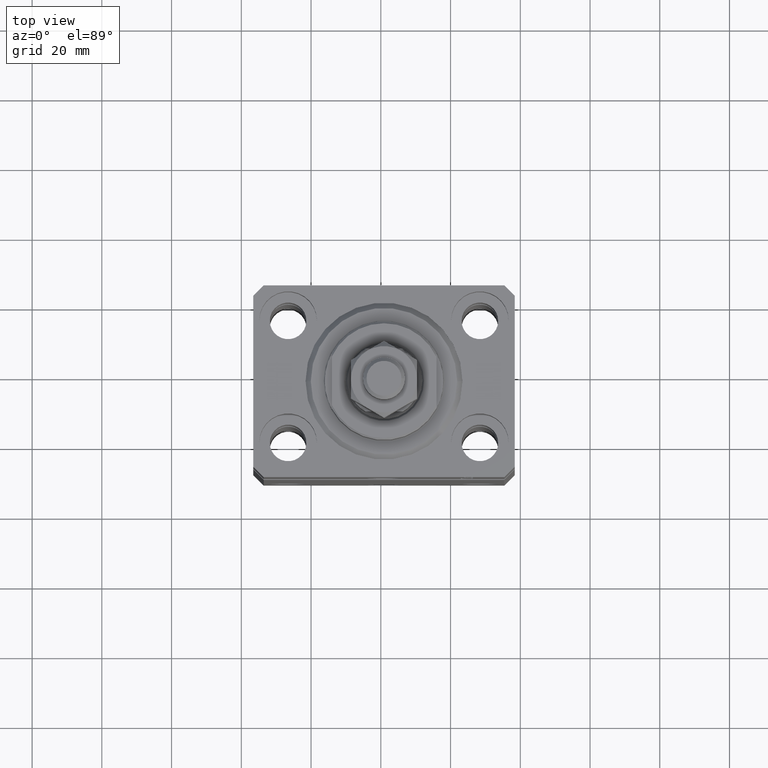
[diagram: clean part render]
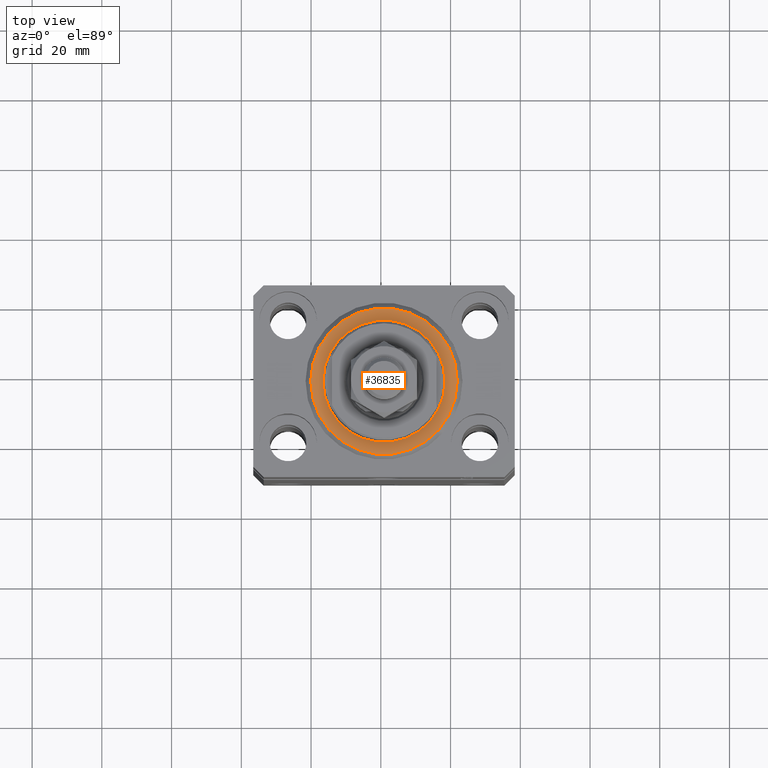
[diagram: same view with one face highlighted and labeled with its STEP entity id]
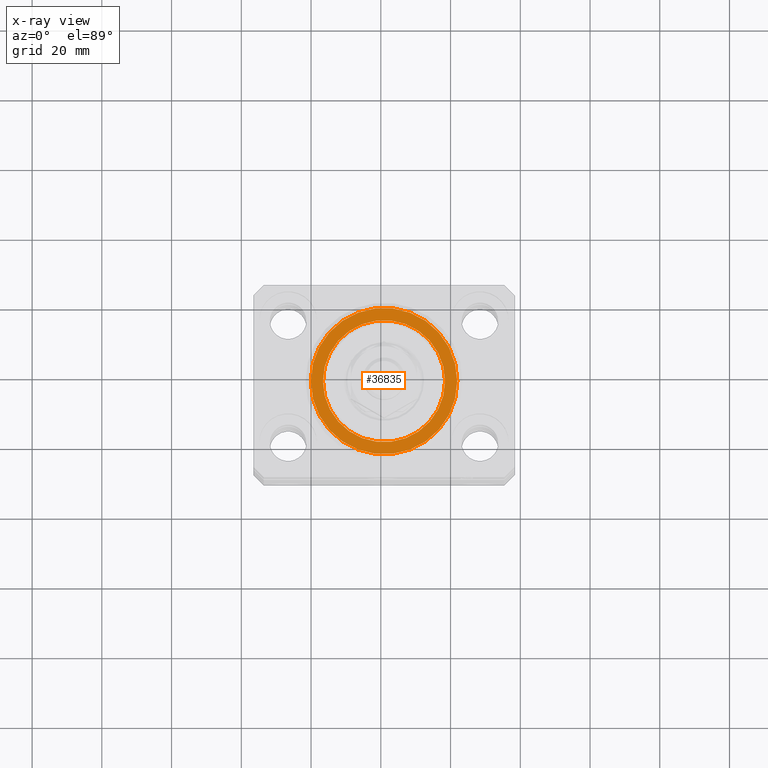
[diagram: x-ray of the same camera — body ghosted, the highlighted face saturated]
A machine part, top view. The second image highlights one B-rep face of the part: STEP entity #36835.
The next image is the same camera in x-ray: the body ghosted, the highlighted face saturated — about 0% of this face is hidden behind the body in this view.
In plain terms, the highlighted planar face has unit normal (0, 0, -1).
Its self-contained STEP definition (entity closure, byte-faithful):
#1366 = CARTESIAN_POINT ( 'NONE',  ( 0.000000000000000000, 0.000000000000000000, 0.000000000000000000 ) ) ;
#1473 = DIRECTION ( 'NONE',  ( 1.000000000000000000, 0.000000000000000000, 0.000000000000000000 ) ) ;
#2148 = ORIENTED_EDGE ( 'NONE', *, *, #35185, .T. ) ;
#3652 = DIRECTION ( 'NONE',  ( 1.000000000000000000, 0.000000000000000000, 0.000000000000000000 ) ) ;
#4868 = DIRECTION ( 'NONE',  ( 1.000000000000000000, 0.000000000000000000, -0.000000000000000000 ) ) ;
#4974 = CARTESIAN_POINT ( 'NONE',  ( 0.000000000000000000, 0.000000000000000000, 0.000000000000000000 ) ) ;
#5499 = AXIS2_PLACEMENT_3D ( 'NONE', #21599, #36094, #3652 ) ;
#5823 = EDGE_CURVE ( 'NONE', #17289, #23769, #31625, .T. ) ;
#7906 = FACE_BOUND ( 'NONE', #40847, .T. ) ;
#11115 = EDGE_LOOP ( 'NONE', ( #26693, #38245 ) ) ;
#11388 = DIRECTION ( 'NONE',  ( 0.000000000000000000, 0.000000000000000000, 1.000000000000000000 ) ) ;
#12474 = DIRECTION ( 'NONE',  ( 0.000000000000000000, 0.000000000000000000, 1.000000000000000000 ) ) ;
#13307 = VERTEX_POINT ( 'NONE', #28949 ) ;
#16213 = DIRECTION ( 'NONE',  ( 1.000000000000000000, 0.000000000000000000, 0.000000000000000000 ) ) ;
#17289 = VERTEX_POINT ( 'NONE', #18579 ) ;
#18579 = CARTESIAN_POINT ( 'NONE',  ( 20.99999999999998934, 0.000000000000000000, 0.000000000000000000 ) ) ;
#18728 = DIRECTION ( 'NONE',  ( -0.000000000000000000, -0.000000000000000000, -1.000000000000000000 ) ) ;
#18789 = CARTESIAN_POINT ( 'NONE',  ( -20.99999999999998934, 2.663606788145492628E-15, 0.000000000000000000 ) ) ;
#18980 = EDGE_CURVE ( 'NONE', #23769, #17289, #29634, .T. ) ;
#19572 = CIRCLE ( 'NONE', #45708, 17.50000000000000000 ) ;
#21599 = CARTESIAN_POINT ( 'NONE',  ( 0.000000000000000000, 0.000000000000000000, 0.000000000000000000 ) ) ;
#21853 = DIRECTION ( 'NONE',  ( 1.000000000000000000, 0.000000000000000000, 0.000000000000000000 ) ) ;
#22546 = DIRECTION ( 'NONE',  ( -0.000000000000000000, -0.000000000000000000, -1.000000000000000000 ) ) ;
#23769 = VERTEX_POINT ( 'NONE', #18789 ) ;
#23968 = CARTESIAN_POINT ( 'NONE',  ( 17.50000000000000000, 0.000000000000000000, -2.168404344971008868E-16 ) ) ;
#24837 = AXIS2_PLACEMENT_3D ( 'NONE', #1366, #11388, #4868 ) ;
#24864 = AXIS2_PLACEMENT_3D ( 'NONE', #4974, #18728, #1473 ) ;
#26085 = PLANE ( 'NONE',  #24837 ) ;
#26247 = CARTESIAN_POINT ( 'NONE',  ( 0.000000000000000000, 0.000000000000000000, 0.000000000000000000 ) ) ;
#26693 = ORIENTED_EDGE ( 'NONE', *, *, #5823, .T. ) ;
#27331 = ORIENTED_EDGE ( 'NONE', *, *, #40711, .T. ) ;
#28949 = CARTESIAN_POINT ( 'NONE',  ( -17.50000000000000000, 2.143131898507868643E-15, -2.168404344971008868E-16 ) ) ;
#29132 = FACE_OUTER_BOUND ( 'NONE', #11115, .T. ) ;
#29634 = CIRCLE ( 'NONE', #39389, 20.99999999999998934 ) ;
#31625 = CIRCLE ( 'NONE', #24864, 20.99999999999998934 ) ;
#35185 = EDGE_CURVE ( 'NONE', #13307, #43924, #19572, .T. ) ;
#36094 = DIRECTION ( 'NONE',  ( 0.000000000000000000, 0.000000000000000000, 1.000000000000000000 ) ) ;
#36835 = ADVANCED_FACE ( 'NONE', ( #7906, #29132 ), #26085, .F. ) ;
#38245 = ORIENTED_EDGE ( 'NONE', *, *, #18980, .T. ) ;
#39389 = AXIS2_PLACEMENT_3D ( 'NONE', #43830, #22546, #21853 ) ;
#40711 = EDGE_CURVE ( 'NONE', #43924, #13307, #43522, .T. ) ;
#40847 = EDGE_LOOP ( 'NONE', ( #27331, #2148 ) ) ;
#43522 = CIRCLE ( 'NONE', #5499, 17.50000000000000000 ) ;
#43830 = CARTESIAN_POINT ( 'NONE',  ( 0.000000000000000000, 0.000000000000000000, 0.000000000000000000 ) ) ;
#43924 = VERTEX_POINT ( 'NONE', #23968 ) ;
#45708 = AXIS2_PLACEMENT_3D ( 'NONE', #26247, #12474, #16213 ) ;